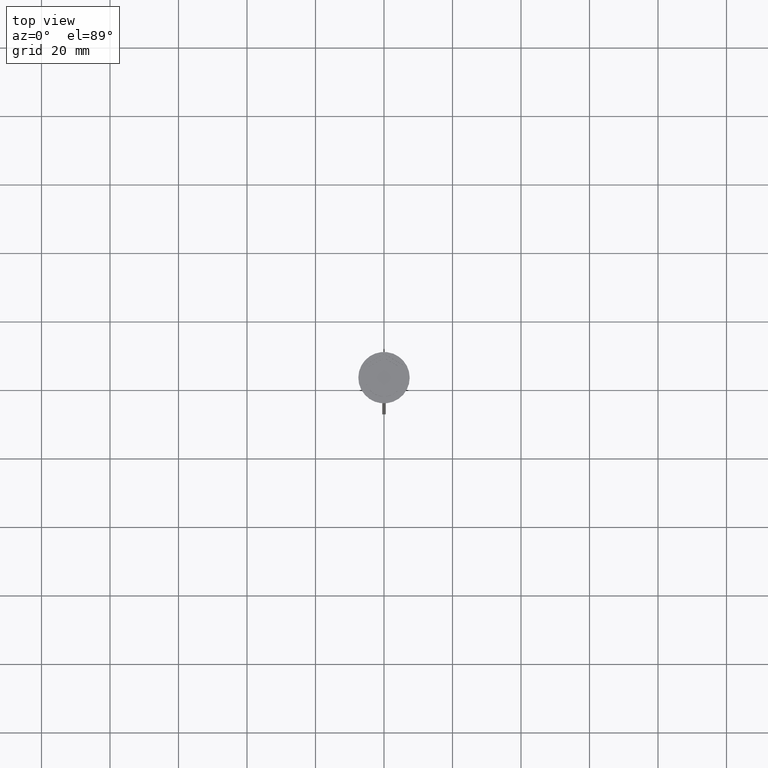
[diagram: clean part render]
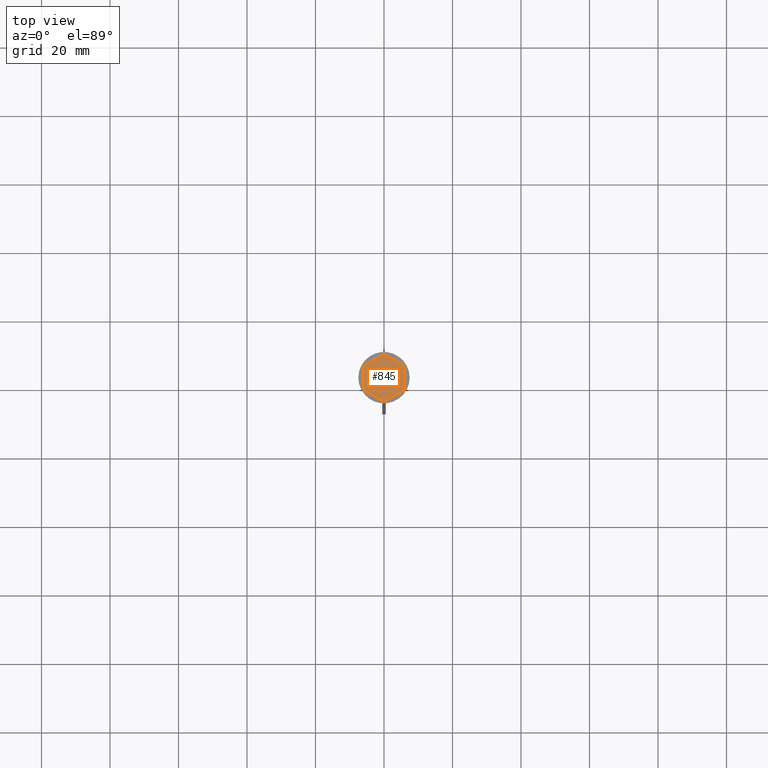
[diagram: same view with one face highlighted and labeled with its STEP entity id]
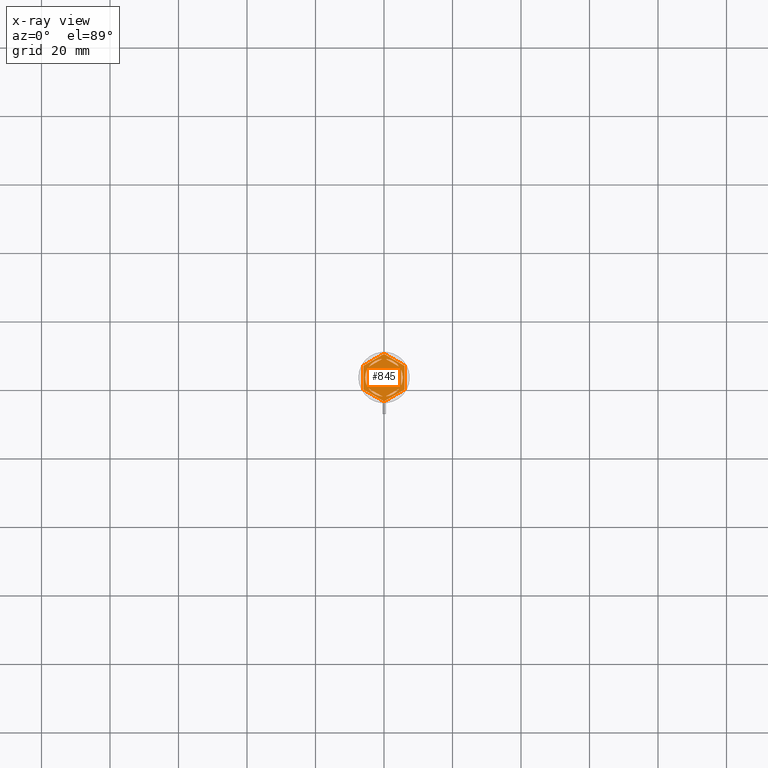
[diagram: x-ray of the same camera — body ghosted, the highlighted face saturated]
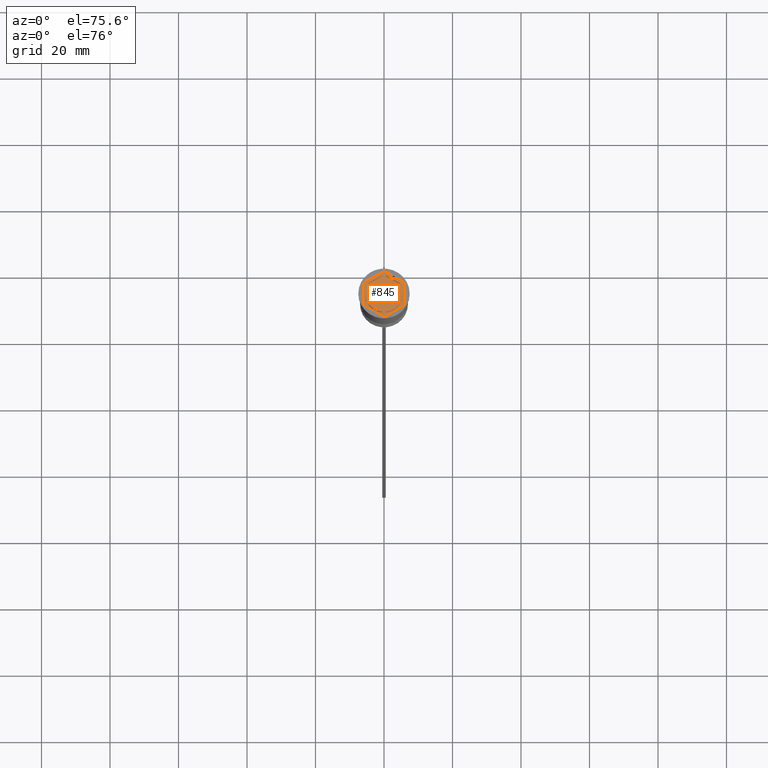
[diagram: same view with one face highlighted and labeled with its STEP entity id]
A machine part, top view. The second image highlights one B-rep face of the part: STEP entity #845.
The next image is the same camera in x-ray: the body ghosted, the highlighted face saturated — about 0% of this face is hidden behind the body in this view.
A second angle (auxiliary view) of the same face is appended — the face is thin or edge-on in the first view.
In plain terms, the highlighted planar face has unit normal (0, 0, 1).
Its self-contained STEP definition (entity closure, byte-faithful):
#5 = AXIS2_PLACEMENT_3D ( 'NONE', #1427, #301, #1804 ) ;
#30 = VERTEX_POINT ( 'NONE', #1471 ) ;
#89 = CARTESIAN_POINT ( 'NONE',  ( 0.000000000000000000, 0.000000000000000000, -1.000000000000000000 ) ) ;
#141 = DIRECTION ( 'NONE',  ( 1.000000000000000000, 0.000000000000000000, 0.000000000000000000 ) ) ;
#157 = EDGE_CURVE ( 'NONE', #1404, #2089, #2178, .T. ) ;
#159 = DIRECTION ( 'NONE',  ( 1.000000000000000000, 0.000000000000000000, 0.000000000000000000 ) ) ;
#166 = AXIS2_PLACEMENT_3D ( 'NONE', #1241, #853, #2222 ) ;
#170 = VERTEX_POINT ( 'NONE', #2372 ) ;
#198 = VECTOR ( 'NONE', #2012, 1000.000000000000000 ) ;
#202 = AXIS2_PLACEMENT_3D ( 'NONE', #326, #1074, #141 ) ;
#212 = VERTEX_POINT ( 'NONE', #1663 ) ;
#217 = CARTESIAN_POINT ( 'NONE',  ( -6.000000000000000000, 3.464101615137752166, -1.000000000000000000 ) ) ;
#232 = EDGE_LOOP ( 'NONE', ( #2135, #1054 ) ) ;
#234 = ORIENTED_EDGE ( 'NONE', *, *, #2283, .F. ) ;
#236 = FACE_BOUND ( 'NONE', #568, .T. ) ;
#237 = EDGE_CURVE ( 'NONE', #2202, #1462, #2131, .T. ) ;
#258 = DIRECTION ( 'NONE',  ( 1.000000000000000000, 0.000000000000000000, -0.000000000000000000 ) ) ;
#267 = CARTESIAN_POINT ( 'NONE',  ( 0.000000000000000000, 0.000000000000000000, -1.000000000000000000 ) ) ;
#301 = DIRECTION ( 'NONE',  ( 0.000000000000000000, 0.000000000000000000, 1.000000000000000000 ) ) ;
#315 = VERTEX_POINT ( 'NONE', #940 ) ;
#326 = CARTESIAN_POINT ( 'NONE',  ( 0.000000000000000000, 0.000000000000000000, -1.000000000000000000 ) ) ;
#350 = DIRECTION ( 'NONE',  ( -0.8660254037844387076, 0.4999999999999998335, 0.000000000000000000 ) ) ;
#383 = VERTEX_POINT ( 'NONE', #217 ) ;
#392 = DIRECTION ( 'NONE',  ( 0.000000000000000000, 0.000000000000000000, 1.000000000000000000 ) ) ;
#393 = CARTESIAN_POINT ( 'NONE',  ( 0.000000000000000000, 6.928203230275506996, -1.000000000000000000 ) ) ;
#400 = VECTOR ( 'NONE', #2201, 1000.000000000000227 ) ;
#401 = AXIS2_PLACEMENT_3D ( 'NONE', #779, #1558, #159 ) ;
#402 = EDGE_CURVE ( 'NONE', #892, #383, #765, .T. ) ;
#440 = FACE_BOUND ( 'NONE', #1081, .T. ) ;
#442 = ORIENTED_EDGE ( 'NONE', *, *, #1894, .F. ) ;
#443 = VECTOR ( 'NONE', #1899, 1000.000000000000114 ) ;
#446 = LINE ( 'NONE', #1040, #198 ) ;
#453 = FACE_BOUND ( 'NONE', #2480, .T. ) ;
#471 = VECTOR ( 'NONE', #565, 1000.000000000000000 ) ;
#509 = VERTEX_POINT ( 'NONE', #1979 ) ;
#514 = VECTOR ( 'NONE', #350, 1000.000000000000000 ) ;
#530 = ORIENTED_EDGE ( 'NONE', *, *, #1431, .T. ) ;
#534 = CARTESIAN_POINT ( 'NONE',  ( 4.999999999999999112, -2.291287847477924355, -1.000000000000000888 ) ) ;
#565 = DIRECTION ( 'NONE',  ( -0.8660254037844385966, 0.5000000000000001110, 0.000000000000000000 ) ) ;
#568 = EDGE_LOOP ( 'NONE', ( #2224, #743 ) ) ;
#575 = ORIENTED_EDGE ( 'NONE', *, *, #677, .T. ) ;
#589 = CARTESIAN_POINT ( 'NONE',  ( -0.5156865167015569629, 5.475770942661155161, -1.000000000000000888 ) ) ;
#605 = CARTESIAN_POINT ( 'NONE',  ( 0.000000000000000000, 0.000000000000000000, -1.000000000000000000 ) ) ;
#617 = EDGE_CURVE ( 'NONE', #754, #1489, #446, .T. ) ;
#677 = EDGE_CURVE ( 'NONE', #509, #863, #1818, .T. ) ;
#689 = CARTESIAN_POINT ( 'NONE',  ( -5.000000000000000888, -2.291287847477921247, -1.000000000000000888 ) ) ;
#693 = LINE ( 'NONE', #1062, #1439 ) ;
#696 = VERTEX_POINT ( 'NONE', #534 ) ;
#726 = ORIENTED_EDGE ( 'NONE', *, *, #1303, .T. ) ;
#738 = ORIENTED_EDGE ( 'NONE', *, *, #1041, .F. ) ;
#743 = ORIENTED_EDGE ( 'NONE', *, *, #811, .F. ) ;
#751 = LINE ( 'NONE', #941, #514 ) ;
#754 = VERTEX_POINT ( 'NONE', #905 ) ;
#765 = LINE ( 'NONE', #393, #2330 ) ;
#779 = CARTESIAN_POINT ( 'NONE',  ( 0.000000000000000000, 0.000000000000000000, -1.000000000000000000 ) ) ;
#805 = CARTESIAN_POINT ( 'NONE',  ( 0.000000000000000000, 0.000000000000000000, -1.000000000000000000 ) ) ;
#811 = EDGE_CURVE ( 'NONE', #1462, #2202, #1273, .T. ) ;
#845 = ADVANCED_FACE ( 'NONE', ( #440, #453, #1993, #1519, #1603, #236, #2386 ), #2167, .T. ) ;
#853 = DIRECTION ( 'NONE',  ( 0.000000000000000000, 0.000000000000000000, 1.000000000000000000 ) ) ;
#861 = ORIENTED_EDGE ( 'NONE', *, *, #1012, .F. ) ;
#863 = VERTEX_POINT ( 'NONE', #995 ) ;
#873 = VECTOR ( 'NONE', #968, 1000.000000000000000 ) ;
#875 = AXIS2_PLACEMENT_3D ( 'NONE', #805, #1544, #1373 ) ;
#876 = CARTESIAN_POINT ( 'NONE',  ( 6.000000000000000000, 3.464101615137753942, -1.000000000000000000 ) ) ;
#892 = VERTEX_POINT ( 'NONE', #1216 ) ;
#905 = CARTESIAN_POINT ( 'NONE',  ( 5.999999999999998224, -3.464101615137753942, -1.000000000000000000 ) ) ;
#908 = EDGE_CURVE ( 'NONE', #1721, #934, #2103, .T. ) ;
#934 = VERTEX_POINT ( 'NONE', #1186 ) ;
#940 = CARTESIAN_POINT ( 'NONE',  ( 4.484313483298442371, 3.184483095183238355, -1.000000000000000888 ) ) ;
#941 = CARTESIAN_POINT ( 'NONE',  ( 6.000000000000000000, 3.464101615137753942, -1.000000000000000000 ) ) ;
#968 = DIRECTION ( 'NONE',  ( 0.000000000000000000, -1.000000000000000000, 0.000000000000000000 ) ) ;
#977 = ORIENTED_EDGE ( 'NONE', *, *, #402, .T. ) ;
#995 = CARTESIAN_POINT ( 'NONE',  ( -4.280685092543093048E-16, -6.928203230275507885, -1.000000000000000000 ) ) ;
#1012 = EDGE_CURVE ( 'NONE', #170, #2276, #1034, .T. ) ;
#1034 = CIRCLE ( 'NONE', #2450, 5.500000000000001776 ) ;
#1040 = CARTESIAN_POINT ( 'NONE',  ( 5.999999999999998224, -3.464101615137753942, -1.000000000000000000 ) ) ;
#1041 = EDGE_CURVE ( 'NONE', #2089, #1404, #693, .T. ) ;
#1044 = CARTESIAN_POINT ( 'NONE',  ( -4.280685092543093048E-16, -6.928203230275507885, -1.000000000000000000 ) ) ;
#1049 = DIRECTION ( 'NONE',  ( 0.8660254037844387076, -0.4999999999999998335, 0.000000000000000000 ) ) ;
#1054 = ORIENTED_EDGE ( 'NONE', *, *, #908, .F. ) ;
#1062 = CARTESIAN_POINT ( 'NONE',  ( -1.734723475976807094E-15, -5.773502691896258199, -1.000000000000000888 ) ) ;
#1071 = VECTOR ( 'NONE', #1317, 1000.000000000000000 ) ;
#1074 = DIRECTION ( 'NONE',  ( 0.000000000000000000, 0.000000000000000000, 1.000000000000000000 ) ) ;
#1081 = EDGE_LOOP ( 'NONE', ( #1622, #234 ) ) ;
#1141 = LINE ( 'NONE', #1293, #1071 ) ;
#1154 = VECTOR ( 'NONE', #1289, 1000.000000000000000 ) ;
#1186 = CARTESIAN_POINT ( 'NONE',  ( -4.484313483298445036, -3.184483095183233470, -1.000000000000000888 ) ) ;
#1216 = CARTESIAN_POINT ( 'NONE',  ( 0.000000000000000000, 6.928203230275506996, -1.000000000000000000 ) ) ;
#1241 = CARTESIAN_POINT ( 'NONE',  ( 0.000000000000000000, 0.000000000000000000, -1.000000000000000000 ) ) ;
#1242 = CIRCLE ( 'NONE', #166, 5.500000000000001776 ) ;
#1254 = ORIENTED_EDGE ( 'NONE', *, *, #1624, .F. ) ;
#1273 = LINE ( 'NONE', #2445, #1154 ) ;
#1275 = CIRCLE ( 'NONE', #5, 5.500000000000001776 ) ;
#1289 = DIRECTION ( 'NONE',  ( 0.8660254037844385966, 0.5000000000000001110, -0.000000000000000000 ) ) ;
#1293 = CARTESIAN_POINT ( 'NONE',  ( -5.000000000000000888, 2.886751345948129099, -1.000000000000000888 ) ) ;
#1303 = EDGE_CURVE ( 'NONE', #383, #509, #1754, .T. ) ;
#1317 = DIRECTION ( 'NONE',  ( 0.000000000000000000, 1.000000000000000000, 0.000000000000000000 ) ) ;
#1330 = DIRECTION ( 'NONE',  ( 0.000000000000000000, 0.000000000000000000, 1.000000000000000000 ) ) ;
#1361 = CIRCLE ( 'NONE', #875, 5.500000000000001776 ) ;
#1373 = DIRECTION ( 'NONE',  ( 1.000000000000000000, 0.000000000000000000, 0.000000000000000000 ) ) ;
#1392 = CARTESIAN_POINT ( 'NONE',  ( -5.000000000000000888, -2.886751345948129099, -1.000000000000000888 ) ) ;
#1399 = EDGE_LOOP ( 'NONE', ( #1957, #738 ) ) ;
#1404 = VERTEX_POINT ( 'NONE', #1991 ) ;
#1414 = VECTOR ( 'NONE', #1815, 1000.000000000000000 ) ;
#1426 = VERTEX_POINT ( 'NONE', #689 ) ;
#1427 = CARTESIAN_POINT ( 'NONE',  ( 0.000000000000000000, 0.000000000000000000, -1.000000000000000000 ) ) ;
#1428 = ORIENTED_EDGE ( 'NONE', *, *, #2267, .F. ) ;
#1430 = CARTESIAN_POINT ( 'NONE',  ( 4.999999999999999112, -2.886751345948130432, -1.000000000000000888 ) ) ;
#1431 = EDGE_CURVE ( 'NONE', #863, #754, #2027, .T. ) ;
#1439 = VECTOR ( 'NONE', #2234, 1000.000000000000114 ) ;
#1459 = EDGE_CURVE ( 'NONE', #934, #1721, #1275, .T. ) ;
#1462 = VERTEX_POINT ( 'NONE', #1830 ) ;
#1471 = CARTESIAN_POINT ( 'NONE',  ( 5.000000000000000888, 2.291287847477922135, -1.000000000000000888 ) ) ;
#1489 = VERTEX_POINT ( 'NONE', #876 ) ;
#1519 = FACE_BOUND ( 'NONE', #232, .T. ) ;
#1523 = EDGE_LOOP ( 'NONE', ( #861, #1254, #442 ) ) ;
#1544 = DIRECTION ( 'NONE',  ( 0.000000000000000000, 0.000000000000000000, 1.000000000000000000 ) ) ;
#1558 = DIRECTION ( 'NONE',  ( 0.000000000000000000, 0.000000000000000000, 1.000000000000000000 ) ) ;
#1583 = EDGE_CURVE ( 'NONE', #1489, #892, #751, .T. ) ;
#1603 = FACE_BOUND ( 'NONE', #1523, .T. ) ;
#1604 = CARTESIAN_POINT ( 'NONE',  ( -5.500000000000001776, 0.000000000000000000, -1.000000000000000000 ) ) ;
#1611 = ORIENTED_EDGE ( 'NONE', *, *, #1583, .T. ) ;
#1622 = ORIENTED_EDGE ( 'NONE', *, *, #1752, .F. ) ;
#1624 = EDGE_CURVE ( 'NONE', #1426, #170, #1141, .T. ) ;
#1641 = DIRECTION ( 'NONE',  ( 1.000000000000000000, 0.000000000000000000, 0.000000000000000000 ) ) ;
#1648 = CARTESIAN_POINT ( 'NONE',  ( -6.000000000000000000, -3.464101615137755719, -1.000000000000000000 ) ) ;
#1656 = ORIENTED_EDGE ( 'NONE', *, *, #617, .T. ) ;
#1663 = CARTESIAN_POINT ( 'NONE',  ( 0.5156865167015596274, 5.475770942661155161, -1.000000000000000888 ) ) ;
#1672 = CARTESIAN_POINT ( 'NONE',  ( 4.484313483298445036, -3.184483095183233026, -1.000000000000000888 ) ) ;
#1721 = VERTEX_POINT ( 'NONE', #2311 ) ;
#1749 = DIRECTION ( 'NONE',  ( -0.8660254037844385966, -0.4999999999999998890, 0.000000000000000000 ) ) ;
#1752 = EDGE_CURVE ( 'NONE', #315, #212, #1361, .T. ) ;
#1754 = LINE ( 'NONE', #2152, #873 ) ;
#1804 = DIRECTION ( 'NONE',  ( 1.000000000000000000, 0.000000000000000000, 0.000000000000000000 ) ) ;
#1810 = DIRECTION ( 'NONE',  ( 0.000000000000000000, 0.000000000000000000, 1.000000000000000000 ) ) ;
#1815 = DIRECTION ( 'NONE',  ( -3.004629197474317076E-16, -1.000000000000000000, 0.000000000000000000 ) ) ;
#1818 = LINE ( 'NONE', #1648, #443 ) ;
#1830 = CARTESIAN_POINT ( 'NONE',  ( -4.484313483298445036, 3.184483095183233470, -1.000000000000000888 ) ) ;
#1892 = CIRCLE ( 'NONE', #2218, 5.500000000000001776 ) ;
#1894 = EDGE_CURVE ( 'NONE', #2276, #1426, #1242, .T. ) ;
#1899 = DIRECTION ( 'NONE',  ( 0.8660254037844388186, -0.4999999999999997224, 0.000000000000000000 ) ) ;
#1957 = ORIENTED_EDGE ( 'NONE', *, *, #157, .F. ) ;
#1979 = CARTESIAN_POINT ( 'NONE',  ( -6.000000000000000000, -3.464101615137755719, -1.000000000000000000 ) ) ;
#1991 = CARTESIAN_POINT ( 'NONE',  ( 0.5156865167015526330, -5.475770942661155161, -1.000000000000000888 ) ) ;
#1993 = FACE_BOUND ( 'NONE', #1399, .T. ) ;
#2012 = DIRECTION ( 'NONE',  ( 2.503857664561932376E-16, 1.000000000000000000, 0.000000000000000000 ) ) ;
#2027 = LINE ( 'NONE', #1044, #400 ) ;
#2057 = ORIENTED_EDGE ( 'NONE', *, *, #2146, .F. ) ;
#2083 = AXIS2_PLACEMENT_3D ( 'NONE', #267, #1330, #258 ) ;
#2089 = VERTEX_POINT ( 'NONE', #1672 ) ;
#2103 = LINE ( 'NONE', #1392, #471 ) ;
#2104 = DIRECTION ( 'NONE',  ( 1.000000000000000000, 0.000000000000000000, 0.000000000000000000 ) ) ;
#2131 = CIRCLE ( 'NONE', #202, 5.500000000000001776 ) ;
#2135 = ORIENTED_EDGE ( 'NONE', *, *, #1459, .F. ) ;
#2146 = EDGE_CURVE ( 'NONE', #696, #30, #1892, .T. ) ;
#2152 = CARTESIAN_POINT ( 'NONE',  ( -6.000000000000000000, 3.464101615137752166, -1.000000000000000000 ) ) ;
#2157 = EDGE_LOOP ( 'NONE', ( #1611, #977, #726, #575, #530, #1656 ) ) ;
#2167 = PLANE ( 'NONE',  #2083 ) ;
#2178 = CIRCLE ( 'NONE', #401, 5.500000000000001776 ) ;
#2197 = LINE ( 'NONE', #1430, #1414 ) ;
#2201 = DIRECTION ( 'NONE',  ( 0.8660254037844385966, 0.5000000000000000000, 0.000000000000000000 ) ) ;
#2202 = VERTEX_POINT ( 'NONE', #589 ) ;
#2218 = AXIS2_PLACEMENT_3D ( 'NONE', #605, #392, #2104 ) ;
#2222 = DIRECTION ( 'NONE',  ( 1.000000000000000000, 0.000000000000000000, 0.000000000000000000 ) ) ;
#2224 = ORIENTED_EDGE ( 'NONE', *, *, #237, .F. ) ;
#2234 = DIRECTION ( 'NONE',  ( -0.8660254037844387076, -0.4999999999999997224, 0.000000000000000000 ) ) ;
#2267 = EDGE_CURVE ( 'NONE', #30, #696, #2197, .T. ) ;
#2276 = VERTEX_POINT ( 'NONE', #1604 ) ;
#2283 = EDGE_CURVE ( 'NONE', #212, #315, #2422, .T. ) ;
#2311 = CARTESIAN_POINT ( 'NONE',  ( -0.5156865167015569629, -5.475770942661155161, -1.000000000000000888 ) ) ;
#2330 = VECTOR ( 'NONE', #1749, 1000.000000000000227 ) ;
#2372 = CARTESIAN_POINT ( 'NONE',  ( -5.000000000000000888, 2.291287847477921247, -1.000000000000000888 ) ) ;
#2386 = FACE_OUTER_BOUND ( 'NONE', #2157, .T. ) ;
#2387 = VECTOR ( 'NONE', #1049, 1000.000000000000114 ) ;
#2389 = CARTESIAN_POINT ( 'NONE',  ( 5.000000000000000888, 2.886751345948130876, -1.000000000000000888 ) ) ;
#2422 = LINE ( 'NONE', #2389, #2387 ) ;
#2445 = CARTESIAN_POINT ( 'NONE',  ( 4.336808689942017736E-16, 5.773502691896259087, -1.000000000000000888 ) ) ;
#2450 = AXIS2_PLACEMENT_3D ( 'NONE', #89, #1810, #1641 ) ;
#2480 = EDGE_LOOP ( 'NONE', ( #2057, #1428 ) ) ;